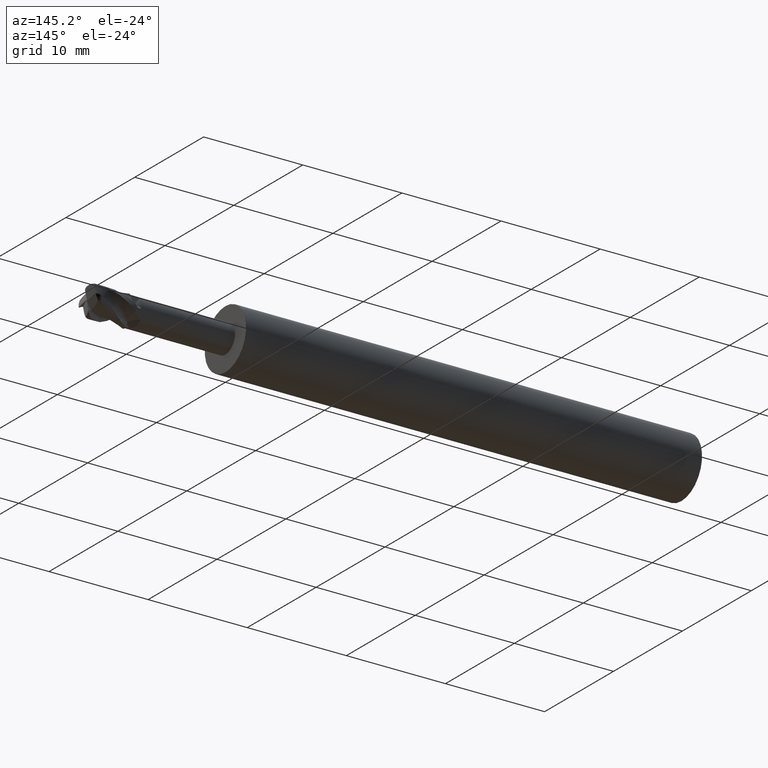
[diagram: clean part render]
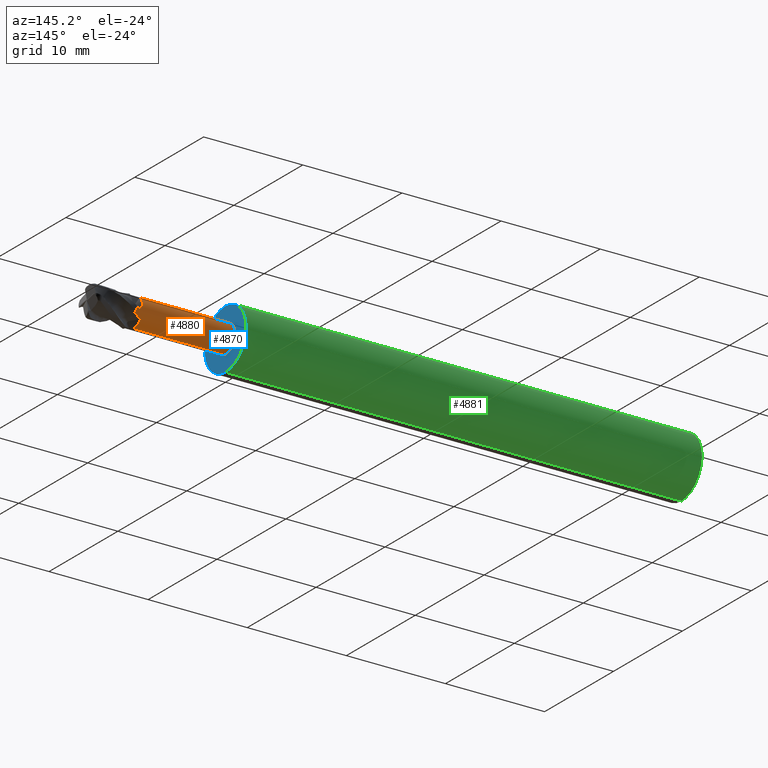
[diagram: same view with three faces highlighted in distinct colors, each labeled with its STEP entity id]
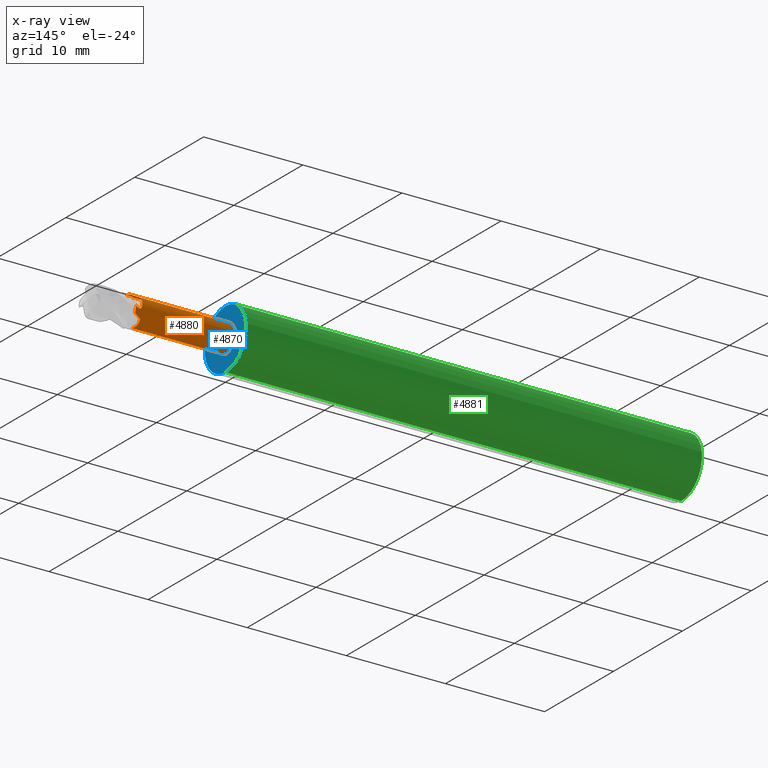
[diagram: x-ray of the same camera — body ghosted, the three highlighted faces saturated]
A machine part, auxiliary view with three faces highlighted in distinct colors.
The next image is the same camera in x-ray (body ghosted, the three faces saturated) — at least one of them is partly hidden behind the body in this view.
Their STEP definitions:

[orange] entity #4880 — the highlighted cylindrical surface (edge-blend (fillet) strip) has radius 1.4 mm, axis along (-1, -0, -0).
#6 = VERTEX_POINT ( 'NONE', #5009 ) ;
#9 = VERTEX_POINT ( 'NONE', #4940 ) ;
#26 = B_SPLINE_CURVE_WITH_KNOTS ( 'NONE', 3,
 ( #3282, #3293, #3294, #3295, #3296, #3297, #3298, #3299 ),
 .UNSPECIFIED., .F., .F.,
 ( 4, 2, 2, 4 ),
 ( 4.065758146820641600E-020, 0.0002343457934825256200, 0.0003515186902237884300, 0.0004686915869650511900 ),
 .UNSPECIFIED. ) ;
#36 = B_SPLINE_CURVE_WITH_KNOTS ( 'NONE', 3,
 ( #3353, #3358, #3359, #3360 ),
 .UNSPECIFIED., .F., .F.,
 ( 4, 4 ),
 ( 0.0000000000000000000, 3.784444954740226600E-005 ),
 .UNSPECIFIED. ) ;
#40 = B_SPLINE_CURVE_WITH_KNOTS ( 'NONE', 3,
 ( #3327, #3340, #3341, #3342, #3343, #3344, #3345 ),
 .UNSPECIFIED., .F., .F.,
 ( 4, 3, 4 ),
 ( 0.0000000000000000000, 0.0001041887297999726100, 0.0002084210057376973500 ),
 .UNSPECIFIED. ) ;
#754 = CARTESIAN_POINT ( 'NONE',  ( 20.00000000000001100, 1.401194375000013300, 2.415435420909490500E-014 ) ) ;
#770 = CARTESIAN_POINT ( 'NONE',  ( 20.00000000000000400, -9.438721591055208900E-015, 1.401194375000013800 ) ) ;
#773 = CARTESIAN_POINT ( 'NONE',  ( 19.31721893854416200, 0.9449999999999743000, 1.036043653865184300 ) ) ;
#784 = CARTESIAN_POINT ( 'NONE',  ( 10.00000000000000200, 1.714505518806309400E-016, -1.400000000000011900 ) ) ;
#785 = CARTESIAN_POINT ( 'NONE',  ( 19.82249120518995200, 1.395740927676049100, -0.1091204051038924800 ) ) ;
#792 = CARTESIAN_POINT ( 'NONE',  ( 19.99999999999999600, 1.265105902674722700, -0.5995890717963521200 ) ) ;
#797 = CARTESIAN_POINT ( 'NONE',  ( 10.00000000000000200, 0.0000000000000000000, 1.400000000000011900 ) ) ;
#802 = CARTESIAN_POINT ( 'NONE',  ( 19.41160318497807000, 1.399556864531372700, -0.03522190998724113200 ) ) ;
#803 = CARTESIAN_POINT ( 'NONE',  ( 19.31721893854416200, 1.036043653865176300, -0.9449999999999851900 ) ) ;
#808 = CARTESIAN_POINT ( 'NONE',  ( 19.41160318497808000, 0.03522190998724845200, 1.399556864531372500 ) ) ;
#816 = CARTESIAN_POINT ( 'NONE',  ( 19.82249120519000100, 0.1091204051038793800, 1.395740927676010000 ) ) ;
#834 = CARTESIAN_POINT ( 'NONE',  ( 19.39660591570775600, -1.926762785778301700E-012, -1.400000000000011900 ) ) ;
#945 = ORIENTED_EDGE ( 'NONE', *, *, #4726, .F. ) ;
#946 = ORIENTED_EDGE ( 'NONE', *, *, #4833, .F. ) ;
#948 = ORIENTED_EDGE ( 'NONE', *, *, #4856, .F. ) ;
#950 = ORIENTED_EDGE ( 'NONE', *, *, #4722, .F. ) ;
#951 = ORIENTED_EDGE ( 'NONE', *, *, #4627, .F. ) ;
#952 = ORIENTED_EDGE ( 'NONE', *, *, #4838, .T. ) ;
#953 = ORIENTED_EDGE ( 'NONE', *, *, #4634, .F. ) ;
#1906 = FACE_OUTER_BOUND ( 'NONE', #1993, .T. ) ;
#1936 = VECTOR ( 'NONE', #2943, 1000.000000000000000 ) ;
#1959 = CIRCLE ( 'NONE', #4620, 1.400000000000011900 ) ;
#1969 = CIRCLE ( 'NONE', #4823, 1.400000000000013200 ) ;
#1985 = LINE ( 'NONE', #3305, #2082 ) ;
#1993 = EDGE_LOOP ( 'NONE', ( #953, #952, #951, #950, #948, #946, #945, #4438, #4605, #4587, #4455, #4583, #4504, #4573 ) ) ;
#2022 = CIRCLE ( 'NONE', #4793, 1.400000000000013200 ) ;
#2047 = CYLINDRICAL_SURFACE ( 'NONE', #4839, 1.400000000000012600 ) ;
#2082 = VECTOR ( 'NONE', #3306, 1000.000000000000000 ) ;
#2091 = LINE ( 'NONE', #2942, #1936 ) ;
#2569 = CARTESIAN_POINT ( 'NONE',  ( 10.00000000000000200, 0.0000000000000000000, 0.0000000000000000000 ) ) ;
#2579 = DIRECTION ( 'NONE',  ( -1.000000000000000000, -0.0000000000000000000, -0.0000000000000000000 ) ) ;
#2580 = DIRECTION ( 'NONE',  ( 0.0000000000000000000, 0.0000000000000000000, 1.000000000000000000 ) ) ;
#2592 = CARTESIAN_POINT ( 'NONE',  ( 19.39660591570775600, -1.926762785778301700E-012, -1.400000000000011900 ) ) ;
#2622 = CARTESIAN_POINT ( 'NONE',  ( 19.35895488746409400, 0.09140429433317770500, -1.400000000000139600 ) ) ;
#2623 = CARTESIAN_POINT ( 'NONE',  ( 19.33020076667952500, 0.1846246584017836600, -1.391123978551958000 ) ) ;
#2624 = CARTESIAN_POINT ( 'NONE',  ( 19.28843637903233300, 0.3737475078389728100, -1.352636310534491600 ) ) ;
#2625 = CARTESIAN_POINT ( 'NONE',  ( 19.27597827517180900, 0.4678619200195478500, -1.323139977957715800 ) ) ;
#2626 = CARTESIAN_POINT ( 'NONE',  ( 19.26588407320935300, 0.6475468523452815300, -1.245101301698797700 ) ) ;
#2627 = CARTESIAN_POINT ( 'NONE',  ( 19.26823887666498800, 0.7348239180004727500, -1.195655587717314900 ) ) ;
#2628 = CARTESIAN_POINT ( 'NONE',  ( 19.28512200786811100, 0.8938756937329753700, -1.081917149812589200 ) ) ;
#2629 = CARTESIAN_POINT ( 'NONE',  ( 19.29964981345870400, 0.9672544518794408100, -1.016803730004862900 ) ) ;
#2630 = CARTESIAN_POINT ( 'NONE',  ( 19.31721893854416200, 1.036043653865176300, -0.9449999999999851900 ) ) ;
#2739 = CARTESIAN_POINT ( 'NONE',  ( 20.00000000000000400, 0.0000000000000000000, 0.0000000000000000000 ) ) ;
#2740 = DIRECTION ( 'NONE',  ( -1.000000000000000000, -0.0000000000000000000, -0.0000000000000000000 ) ) ;
#2741 = DIRECTION ( 'NONE',  ( 0.0000000000000000000, 0.0000000000000000000, 1.000000000000000000 ) ) ;
#2742 = CARTESIAN_POINT ( 'NONE',  ( 20.00000000000001100, 0.5995890717867885500, 1.265105902679254800 ) ) ;
#2754 = CARTESIAN_POINT ( 'NONE',  ( 19.77288760834862900, 0.7260596830782318800, 1.205165943287752800 ) ) ;
#2755 = CARTESIAN_POINT ( 'NONE',  ( 19.54895498029456400, 0.8448885077335915900, 1.124532829184492300 ) ) ;
#2756 = CARTESIAN_POINT ( 'NONE',  ( 19.31721893854416200, 0.9449999999999743000, 1.036043653865184300 ) ) ;
#2757 = CARTESIAN_POINT ( 'NONE',  ( 19.82249120518995200, 1.395740927676049100, -0.1091204051038924800 ) ) ;
#2769 = CARTESIAN_POINT ( 'NONE',  ( 19.75499733876235500, 1.392503861952354900, -0.1505251736422420500 ) ) ;
#2770 = CARTESIAN_POINT ( 'NONE',  ( 19.67591922550006000, 1.389514329051686500, -0.1712452401150906800 ) ) ;
#2771 = CARTESIAN_POINT ( 'NONE',  ( 19.55884398065610000, 1.391023501469027500, -0.1583425687758079100 ) ) ;
#2772 = CARTESIAN_POINT ( 'NONE',  ( 19.51987341577850900, 1.392540466093841400, -0.1459538783544581100 ) ) ;
#2773 = CARTESIAN_POINT ( 'NONE',  ( 19.45407472852584600, 1.396397002782452400, -0.1026980765922243200 ) ) ;
#2774 = CARTESIAN_POINT ( 'NONE',  ( 19.42766611960309600, 1.398637825718708400, -0.07174028958394281000 ) ) ;
#2775 = CARTESIAN_POINT ( 'NONE',  ( 19.41160318497807000, 1.399556864531372700, -0.03522190998724113200 ) ) ;
#2885 = CARTESIAN_POINT ( 'NONE',  ( 19.99999999999999600, 1.265105902674722700, -0.5995890717963521200 ) ) ;
#2895 = CARTESIAN_POINT ( 'NONE',  ( 19.41160318497807000, 1.399556864531372700, -0.03522190998724113200 ) ) ;
#2896 = CARTESIAN_POINT ( 'NONE',  ( 19.77288760834999000, 1.205165943282844300, -0.7260596830861179000 ) ) ;
#2897 = CARTESIAN_POINT ( 'NONE',  ( 19.54895498029159400, 1.124532829185290100, -0.8448885077327218400 ) ) ;
#2898 = CARTESIAN_POINT ( 'NONE',  ( 19.31721893854416200, 1.036043653865176300, -0.9449999999999851900 ) ) ;
#2901 = CARTESIAN_POINT ( 'NONE',  ( 19.37032305043569700, 1.401918703101938000, 0.05862670258225680800 ) ) ;
#2902 = CARTESIAN_POINT ( 'NONE',  ( 19.33874036490193800, 1.394963139818457000, 0.1544925616182889800 ) ) ;
#2903 = CARTESIAN_POINT ( 'NONE',  ( 19.29244543088700300, 1.359367855080883900, 0.3491549049066108300 ) ) ;
#2904 = CARTESIAN_POINT ( 'NONE',  ( 19.27818082196119700, 1.330508738668171800, 0.4471507914079434500 ) ) ;
#2905 = CARTESIAN_POINT ( 'NONE',  ( 19.26581350730677400, 1.252563854595986700, 0.6334675398856382000 ) ) ;
#2906 = CARTESIAN_POINT ( 'NONE',  ( 19.26757380751666200, 1.202433340213640500, 0.7241199147124854900 ) ) ;
#2907 = CARTESIAN_POINT ( 'NONE',  ( 19.28419404773780600, 1.086076456306425100, 0.8891757529293220500 ) ) ;
#2908 = CARTESIAN_POINT ( 'NONE',  ( 19.29901840083180500, 1.019115544398047300, 0.9651394651343032600 ) ) ;
#2909 = CARTESIAN_POINT ( 'NONE',  ( 19.31721893854416200, 0.9449999999999743000, 1.036043653865184300 ) ) ;
#2942 = CARTESIAN_POINT ( 'NONE',  ( -39.76065438357068200, 0.0000000000000000000, 1.400000000000012600 ) ) ;
#2943 = DIRECTION ( 'NONE',  ( -1.000000000000000000, -0.0000000000000000000, -0.0000000000000000000 ) ) ;
#2944 = CARTESIAN_POINT ( 'NONE',  ( 20.00000000000000400, -9.438721591055208900E-015, 1.401194375000013800 ) ) ;
#2948 = CARTESIAN_POINT ( 'NONE',  ( 19.97041839941816100, 0.01819539496219798500, 1.400000000000005000 ) ) ;
#2949 = CARTESIAN_POINT ( 'NONE',  ( 19.94083927871403000, 0.03639828347392335500, 1.399645133833995700 ) ) ;
#2950 = CARTESIAN_POINT ( 'NONE',  ( 19.91126212898968000, 0.05458707073525707900, 1.398935399405054000 ) ) ;
#2951 = CARTESIAN_POINT ( 'NONE',  ( 19.88167261903767300, 0.07278345905191373200, 1.398225368379611500 ) ) ;
#2952 = CARTESIAN_POINT ( 'NONE',  ( 19.85208198229114300, 0.09096762114157158600, 1.397160130266196000 ) ) ;
#2953 = CARTESIAN_POINT ( 'NONE',  ( 19.82249120519000100, 0.1091204051038793800, 1.395740927676010000 ) ) ;
#3186 = CARTESIAN_POINT ( 'NONE',  ( 20.00000000000000400, 0.0000000000000000000, 0.0000000000000000000 ) ) ;
#3193 = DIRECTION ( 'NONE',  ( -1.000000000000000000, -0.0000000000000000000, -0.0000000000000000000 ) ) ;
#3194 = DIRECTION ( 'NONE',  ( 0.0000000000000000000, 0.0000000000000000000, 1.000000000000000000 ) ) ;
#3282 = CARTESIAN_POINT ( 'NONE',  ( 19.82249120519000100, 0.1091204051038793800, 1.395740927676010000 ) ) ;
#3293 = CARTESIAN_POINT ( 'NONE',  ( 19.75499733876240100, 0.1505251736422341100, 1.392503861952334900 ) ) ;
#3294 = CARTESIAN_POINT ( 'NONE',  ( 19.67591922550010600, 0.1712452401150981200, 1.389514329051686500 ) ) ;
#3295 = CARTESIAN_POINT ( 'NONE',  ( 19.55884398065614600, 0.1583425687758285000, 1.391023501469026900 ) ) ;
#3296 = CARTESIAN_POINT ( 'NONE',  ( 19.51987341577853000, 0.1459538783544759600, 1.392540466093838300 ) ) ;
#3297 = CARTESIAN_POINT ( 'NONE',  ( 19.45407472852585300, 0.1026980765922370600, 1.396397002782451300 ) ) ;
#3298 = CARTESIAN_POINT ( 'NONE',  ( 19.42766611960310300, 0.07174028958396165600, 1.398637825718711100 ) ) ;
#3299 = CARTESIAN_POINT ( 'NONE',  ( 19.41160318497808000, 0.03522190998724845200, 1.399556864531372500 ) ) ;
#3305 = CARTESIAN_POINT ( 'NONE',  ( -39.76065438357068200, 1.714505518806309900E-016, -1.400000000000012600 ) ) ;
#3306 = DIRECTION ( 'NONE',  ( -1.000000000000000000, -0.0000000000000000000, -0.0000000000000000000 ) ) ;
#3327 = CARTESIAN_POINT ( 'NONE',  ( 20.00000000000001100, 1.401194375000013300, 2.415435420909490500E-014 ) ) ;
#3340 = CARTESIAN_POINT ( 'NONE',  ( 19.97041839941815400, 1.400000000000038100, -0.01819539496215697200 ) ) ;
#3341 = CARTESIAN_POINT ( 'NONE',  ( 19.94083927871403400, 1.399645133833994800, -0.03639828347390560600 ) ) ;
#3342 = CARTESIAN_POINT ( 'NONE',  ( 19.91126212898968000, 1.398935399405053300, -0.05458707073524311100 ) ) ;
#3343 = CARTESIAN_POINT ( 'NONE',  ( 19.88167261903767300, 1.398225368379610900, -0.07278345905190188000 ) ) ;
#3344 = CARTESIAN_POINT ( 'NONE',  ( 19.85208198229114300, 1.397160130266200700, -0.09096762114156375900 ) ) ;
#3345 = CARTESIAN_POINT ( 'NONE',  ( 19.82249120518995200, 1.395740927676049100, -0.1091204051038924800 ) ) ;
#3353 = CARTESIAN_POINT ( 'NONE',  ( 19.41160318497808000, 0.03522190998724845200, 1.399556864531372500 ) ) ;
#3358 = CARTESIAN_POINT ( 'NONE',  ( 19.40645273995534100, 0.02351259448093847100, 1.399851546703442500 ) ) ;
#3359 = CARTESIAN_POINT ( 'NONE',  ( 19.40145481082820200, 0.01177152012935980500, 1.399999999999996400 ) ) ;
#3360 = CARTESIAN_POINT ( 'NONE',  ( 19.39660591570775600, 1.928199353656845400E-012, 1.400000000000012300 ) ) ;
#3574 = B_SPLINE_CURVE_WITH_KNOTS ( 'NONE', 3,
 ( #2592, #2622, #2623, #2624, #2625, #2626, #2627, #2628, #2629, #2630 ),
 .UNSPECIFIED., .F., .F.,
 ( 4, 2, 2, 2, 4 ),
 ( 3.784444954740354700E-005, 0.0003317015867684084900, 0.0006255587239894134700, 0.0009194158612104184400, 0.001213272998431423700 ),
 .UNSPECIFIED. ) ;
#3587 = B_SPLINE_CURVE_WITH_KNOTS ( 'NONE', 3,
 ( #2757, #2769, #2770, #2771, #2772, #2773, #2774, #2775 ),
 .UNSPECIFIED., .F., .F.,
 ( 4, 2, 2, 4 ),
 ( 0.0000000000000000000, 0.0002343457934824986300, 0.0003515186902237530900, 0.0004686915869650075500 ),
 .UNSPECIFIED. ) ;
#3588 = B_SPLINE_CURVE_WITH_KNOTS ( 'NONE', 3,
 ( #2742, #2754, #2755, #2756 ),
 .UNSPECIFIED., .F., .F.,
 ( 4, 4 ),
 ( 0.0000000000000000000, 0.0007978802246656163500 ),
 .UNSPECIFIED. ) ;
#3603 = B_SPLINE_CURVE_WITH_KNOTS ( 'NONE', 3,
 ( #2885, #2896, #2897, #2898 ),
 .UNSPECIFIED., .F., .F.,
 ( 4, 4 ),
 ( 0.0000000000000000000, 0.0007978802246601647600 ),
 .UNSPECIFIED. ) ;
#3604 = B_SPLINE_CURVE_WITH_KNOTS ( 'NONE', 3,
 ( #2895, #2901, #2902, #2903, #2904, #2905, #2906, #2907, #2908, #2909 ),
 .UNSPECIFIED., .F., .F.,
 ( 4, 2, 2, 2, 4 ),
 ( 0.0000000000000000000, 0.0003033182496078575600, 0.0006066364992157151200, 0.0009099547488235727400, 0.001213272998431430200 ),
 .UNSPECIFIED. ) ;
#3611 = B_SPLINE_CURVE_WITH_KNOTS ( 'NONE', 3,
 ( #2944, #2948, #2949, #2950, #2951, #2952, #2953 ),
 .UNSPECIFIED., .F., .F.,
 ( 4, 3, 4 ),
 ( 0.0000000000000000000, 0.0001041887297999562700, 0.0002084210057376739800 ),
 .UNSPECIFIED. ) ;
#4108 = DIRECTION ( 'NONE',  ( 0.0000000000000000000, 0.0000000000000000000, 1.000000000000000000 ) ) ;
#4109 = DIRECTION ( 'NONE',  ( -1.000000000000000000, -0.0000000000000000000, -0.0000000000000000000 ) ) ;
#4110 = CARTESIAN_POINT ( 'NONE',  ( -39.76065438357068200, 0.0000000000000000000, 0.0000000000000000000 ) ) ;
#4438 = ORIENTED_EDGE ( 'NONE', *, *, #4663, .T. ) ;
#4455 = ORIENTED_EDGE ( 'NONE', *, *, #4670, .F. ) ;
#4504 = ORIENTED_EDGE ( 'NONE', *, *, #4795, .T. ) ;
#4573 = ORIENTED_EDGE ( 'NONE', *, *, #4704, .T. ) ;
#4583 = ORIENTED_EDGE ( 'NONE', *, *, #4850, .F. ) ;
#4587 = ORIENTED_EDGE ( 'NONE', *, *, #4705, .F. ) ;
#4605 = ORIENTED_EDGE ( 'NONE', *, *, #4666, .T. ) ;
#4620 = AXIS2_PLACEMENT_3D ( 'NONE', #2569, #2579, #2580 ) ;
#4627 = EDGE_CURVE ( 'NONE', #4982, #4951, #1959, .T. ) ;
#4634 = EDGE_CURVE ( 'NONE', #5026, #4988, #3574, .T. ) ;
#4663 = EDGE_CURVE ( 'NONE', #4932, #9, #2022, .T. ) ;
#4666 = EDGE_CURVE ( 'NONE', #9, #4936, #3588, .T. ) ;
#4670 = EDGE_CURVE ( 'NONE', #4952, #4987, #3587, .T. ) ;
#4704 = EDGE_CURVE ( 'NONE', #4970, #4988, #3603, .T. ) ;
#4705 = EDGE_CURVE ( 'NONE', #4987, #4936, #3604, .T. ) ;
#4722 = EDGE_CURVE ( 'NONE', #6, #4982, #2091, .T. ) ;
#4726 = EDGE_CURVE ( 'NONE', #4932, #5005, #3611, .T. ) ;
#4793 = AXIS2_PLACEMENT_3D ( 'NONE', #2739, #2740, #2741 ) ;
#4795 = EDGE_CURVE ( 'NONE', #4909, #4970, #1969, .T. ) ;
#4823 = AXIS2_PLACEMENT_3D ( 'NONE', #3186, #3193, #3194 ) ;
#4833 = EDGE_CURVE ( 'NONE', #5005, #4994, #26, .T. ) ;
#4838 = EDGE_CURVE ( 'NONE', #5026, #4951, #1985, .T. ) ;
#4839 = AXIS2_PLACEMENT_3D ( 'NONE', #4110, #4109, #4108 ) ;
#4850 = EDGE_CURVE ( 'NONE', #4909, #4952, #40, .T. ) ;
#4856 = EDGE_CURVE ( 'NONE', #4994, #6, #36, .T. ) ;
#4880 = ADVANCED_FACE ( 'NONE', ( #1906 ), #2047, .T. ) ;
#4909 = VERTEX_POINT ( 'NONE', #754 ) ;
#4932 = VERTEX_POINT ( 'NONE', #770 ) ;
#4936 = VERTEX_POINT ( 'NONE', #773 ) ;
#4940 = CARTESIAN_POINT ( 'NONE',  ( 20.00000000000001100, 0.5995890717867885500, 1.265105902679254800 ) ) ;
#4951 = VERTEX_POINT ( 'NONE', #784 ) ;
#4952 = VERTEX_POINT ( 'NONE', #785 ) ;
#4970 = VERTEX_POINT ( 'NONE', #792 ) ;
#4982 = VERTEX_POINT ( 'NONE', #797 ) ;
#4987 = VERTEX_POINT ( 'NONE', #802 ) ;
#4988 = VERTEX_POINT ( 'NONE', #803 ) ;
#4994 = VERTEX_POINT ( 'NONE', #808 ) ;
#5005 = VERTEX_POINT ( 'NONE', #816 ) ;
#5009 = CARTESIAN_POINT ( 'NONE',  ( 19.39660591570775600, 1.928199353656845400E-012, 1.400000000000012300 ) ) ;
#5026 = VERTEX_POINT ( 'NONE', #834 ) ;

[blue] entity #4870 — the highlighted planar face has unit normal (-1, 0, -0).
#784 = CARTESIAN_POINT ( 'NONE',  ( 10.00000000000000200, 1.714505518806309400E-016, -1.400000000000011900 ) ) ;
#797 = CARTESIAN_POINT ( 'NONE',  ( 10.00000000000000200, 0.0000000000000000000, 1.400000000000011900 ) ) ;
#801 = CARTESIAN_POINT ( 'NONE',  ( 10.00000000000000900, 3.673940397442074200E-016, -3.000000000000012000 ) ) ;
#811 = CARTESIAN_POINT ( 'NONE',  ( 10.00000000000000900, 0.0000000000000000000, 3.000000000000012000 ) ) ;
#1942 = CIRCLE ( 'NONE', #4857, 1.400000000000011900 ) ;
#1959 = CIRCLE ( 'NONE', #4620, 1.400000000000011900 ) ;
#2002 = FACE_OUTER_BOUND ( 'NONE', #2075, .T. ) ;
#2025 = FACE_BOUND ( 'NONE', #2055, .T. ) ;
#2055 = EDGE_LOOP ( 'NONE', ( #4565, #4562 ) ) ;
#2058 = CIRCLE ( 'NONE', #4733, 3.000000000000012000 ) ;
#2075 = EDGE_LOOP ( 'NONE', ( #4462, #4487 ) ) ;
#2095 = CIRCLE ( 'NONE', #4738, 3.000000000000012000 ) ;
#2569 = CARTESIAN_POINT ( 'NONE',  ( 10.00000000000000200, 0.0000000000000000000, 0.0000000000000000000 ) ) ;
#2579 = DIRECTION ( 'NONE',  ( -1.000000000000000000, -0.0000000000000000000, -0.0000000000000000000 ) ) ;
#2580 = DIRECTION ( 'NONE',  ( 0.0000000000000000000, 0.0000000000000000000, 1.000000000000000000 ) ) ;
#2920 = CARTESIAN_POINT ( 'NONE',  ( 10.00000000000000200, 0.0000000000000000000, 0.0000000000000000000 ) ) ;
#2921 = DIRECTION ( 'NONE',  ( -1.000000000000000000, -0.0000000000000000000, -0.0000000000000000000 ) ) ;
#2922 = DIRECTION ( 'NONE',  ( 0.0000000000000000000, 0.0000000000000000000, 1.000000000000000000 ) ) ;
#2986 = CARTESIAN_POINT ( 'NONE',  ( 10.00000000000000900, 0.0000000000000000000, 0.0000000000000000000 ) ) ;
#2987 = DIRECTION ( 'NONE',  ( -1.000000000000000000, -0.0000000000000000000, -0.0000000000000000000 ) ) ;
#2988 = DIRECTION ( 'NONE',  ( 0.0000000000000000000, 0.0000000000000000000, 1.000000000000000000 ) ) ;
#3032 = CARTESIAN_POINT ( 'NONE',  ( 10.00000000000000900, 0.0000000000000000000, 0.0000000000000000000 ) ) ;
#3037 = DIRECTION ( 'NONE',  ( -1.000000000000000000, -0.0000000000000000000, -0.0000000000000000000 ) ) ;
#3038 = DIRECTION ( 'NONE',  ( 0.0000000000000000000, 0.0000000000000000000, 1.000000000000000000 ) ) ;
#3877 = CARTESIAN_POINT ( 'NONE',  ( 10.00000000000000500, 1.400000000000011900, 0.0000000000000000000 ) ) ;
#3878 = PLANE ( 'NONE',  #4653 ) ;
#3879 = DIRECTION ( 'NONE',  ( -1.000000000000000000, 0.0000000000000000000, -0.0000000000000000000 ) ) ;
#3880 = DIRECTION ( 'NONE',  ( -0.0000000000000000000, 0.0000000000000000000, 1.000000000000000000 ) ) ;
#4462 = ORIENTED_EDGE ( 'NONE', *, *, #4731, .F. ) ;
#4487 = ORIENTED_EDGE ( 'NONE', *, *, #4744, .F. ) ;
#4562 = ORIENTED_EDGE ( 'NONE', *, *, #4715, .T. ) ;
#4565 = ORIENTED_EDGE ( 'NONE', *, *, #4627, .T. ) ;
#4620 = AXIS2_PLACEMENT_3D ( 'NONE', #2569, #2579, #2580 ) ;
#4627 = EDGE_CURVE ( 'NONE', #4982, #4951, #1959, .T. ) ;
#4653 = AXIS2_PLACEMENT_3D ( 'NONE', #3877, #3879, #3880 ) ;
#4715 = EDGE_CURVE ( 'NONE', #4951, #4982, #1942, .T. ) ;
#4731 = EDGE_CURVE ( 'NONE', #5000, #4986, #2095, .T. ) ;
#4733 = AXIS2_PLACEMENT_3D ( 'NONE', #3032, #3037, #3038 ) ;
#4738 = AXIS2_PLACEMENT_3D ( 'NONE', #2986, #2987, #2988 ) ;
#4744 = EDGE_CURVE ( 'NONE', #4986, #5000, #2058, .T. ) ;
#4857 = AXIS2_PLACEMENT_3D ( 'NONE', #2920, #2921, #2922 ) ;
#4870 = ADVANCED_FACE ( 'NONE', ( #2002, #2025 ), #3878, .F. ) ;
#4951 = VERTEX_POINT ( 'NONE', #784 ) ;
#4982 = VERTEX_POINT ( 'NONE', #797 ) ;
#4986 = VERTEX_POINT ( 'NONE', #801 ) ;
#5000 = VERTEX_POINT ( 'NONE', #811 ) ;

[green] entity #4881 — the highlighted cylindrical surface (edge-blend (fillet) strip) has radius 3 mm, axis along (-1, -0, -0).
#4 = VERTEX_POINT ( 'NONE', #4997 ) ;
#779 = CARTESIAN_POINT ( 'NONE',  ( -36.00000000000000000, 3.673940397442068700E-016, -3.000000000000005800 ) ) ;
#801 = CARTESIAN_POINT ( 'NONE',  ( 10.00000000000000900, 3.673940397442074200E-016, -3.000000000000012000 ) ) ;
#811 = CARTESIAN_POINT ( 'NONE',  ( 10.00000000000000900, 0.0000000000000000000, 3.000000000000012000 ) ) ;
#954 = ORIENTED_EDGE ( 'NONE', *, *, #4809, .F. ) ;
#955 = ORIENTED_EDGE ( 'NONE', *, *, #4662, .F. ) ;
#957 = ORIENTED_EDGE ( 'NONE', *, *, #4845, .T. ) ;
#958 = ORIENTED_EDGE ( 'NONE', *, *, #4731, .T. ) ;
#1909 = CYLINDRICAL_SURFACE ( 'NONE', #4836, 3.000000000000008900 ) ;
#1931 = LINE ( 'NONE', #3318, #1971 ) ;
#1939 = LINE ( 'NONE', #3223, #1968 ) ;
#1968 = VECTOR ( 'NONE', #3226, 1000.000000000000000 ) ;
#1971 = VECTOR ( 'NONE', #3319, 1000.000000000000000 ) ;
#1975 = EDGE_LOOP ( 'NONE', ( #958, #957, #955, #954 ) ) ;
#2048 = FACE_OUTER_BOUND ( 'NONE', #1975, .T. ) ;
#2050 = CIRCLE ( 'NONE', #4830, 3.000000000000005800 ) ;
#2095 = CIRCLE ( 'NONE', #4738, 3.000000000000012000 ) ;
#2733 = CARTESIAN_POINT ( 'NONE',  ( -36.00000000000000000, 0.0000000000000000000, 0.0000000000000000000 ) ) ;
#2737 = DIRECTION ( 'NONE',  ( -1.000000000000000000, -0.0000000000000000000, -0.0000000000000000000 ) ) ;
#2738 = DIRECTION ( 'NONE',  ( 0.0000000000000000000, 0.0000000000000000000, 1.000000000000000000 ) ) ;
#2986 = CARTESIAN_POINT ( 'NONE',  ( 10.00000000000000900, 0.0000000000000000000, 0.0000000000000000000 ) ) ;
#2987 = DIRECTION ( 'NONE',  ( -1.000000000000000000, -0.0000000000000000000, -0.0000000000000000000 ) ) ;
#2988 = DIRECTION ( 'NONE',  ( 0.0000000000000000000, 0.0000000000000000000, 1.000000000000000000 ) ) ;
#3223 = CARTESIAN_POINT ( 'NONE',  ( -39.76065438357068200, 0.0000000000000000000, 3.000000000000008900 ) ) ;
#3226 = DIRECTION ( 'NONE',  ( -1.000000000000000000, -0.0000000000000000000, -0.0000000000000000000 ) ) ;
#3318 = CARTESIAN_POINT ( 'NONE',  ( -39.76065438357068200, 3.673940397442070200E-016, -3.000000000000008900 ) ) ;
#3319 = DIRECTION ( 'NONE',  ( -1.000000000000000000, -0.0000000000000000000, -0.0000000000000000000 ) ) ;
#4111 = DIRECTION ( 'NONE',  ( 0.0000000000000000000, 0.0000000000000000000, 1.000000000000000000 ) ) ;
#4112 = DIRECTION ( 'NONE',  ( -1.000000000000000000, -0.0000000000000000000, -0.0000000000000000000 ) ) ;
#4113 = CARTESIAN_POINT ( 'NONE',  ( -39.76065438357068200, 0.0000000000000000000, 0.0000000000000000000 ) ) ;
#4662 = EDGE_CURVE ( 'NONE', #4, #4945, #2050, .T. ) ;
#4731 = EDGE_CURVE ( 'NONE', #5000, #4986, #2095, .T. ) ;
#4738 = AXIS2_PLACEMENT_3D ( 'NONE', #2986, #2987, #2988 ) ;
#4809 = EDGE_CURVE ( 'NONE', #5000, #4, #1939, .T. ) ;
#4830 = AXIS2_PLACEMENT_3D ( 'NONE', #2733, #2737, #2738 ) ;
#4836 = AXIS2_PLACEMENT_3D ( 'NONE', #4113, #4112, #4111 ) ;
#4845 = EDGE_CURVE ( 'NONE', #4986, #4945, #1931, .T. ) ;
#4881 = ADVANCED_FACE ( 'NONE', ( #2048 ), #1909, .T. ) ;
#4945 = VERTEX_POINT ( 'NONE', #779 ) ;
#4986 = VERTEX_POINT ( 'NONE', #801 ) ;
#4997 = CARTESIAN_POINT ( 'NONE',  ( -36.00000000000000000, 0.0000000000000000000, 3.000000000000005800 ) ) ;
#5000 = VERTEX_POINT ( 'NONE', #811 ) ;